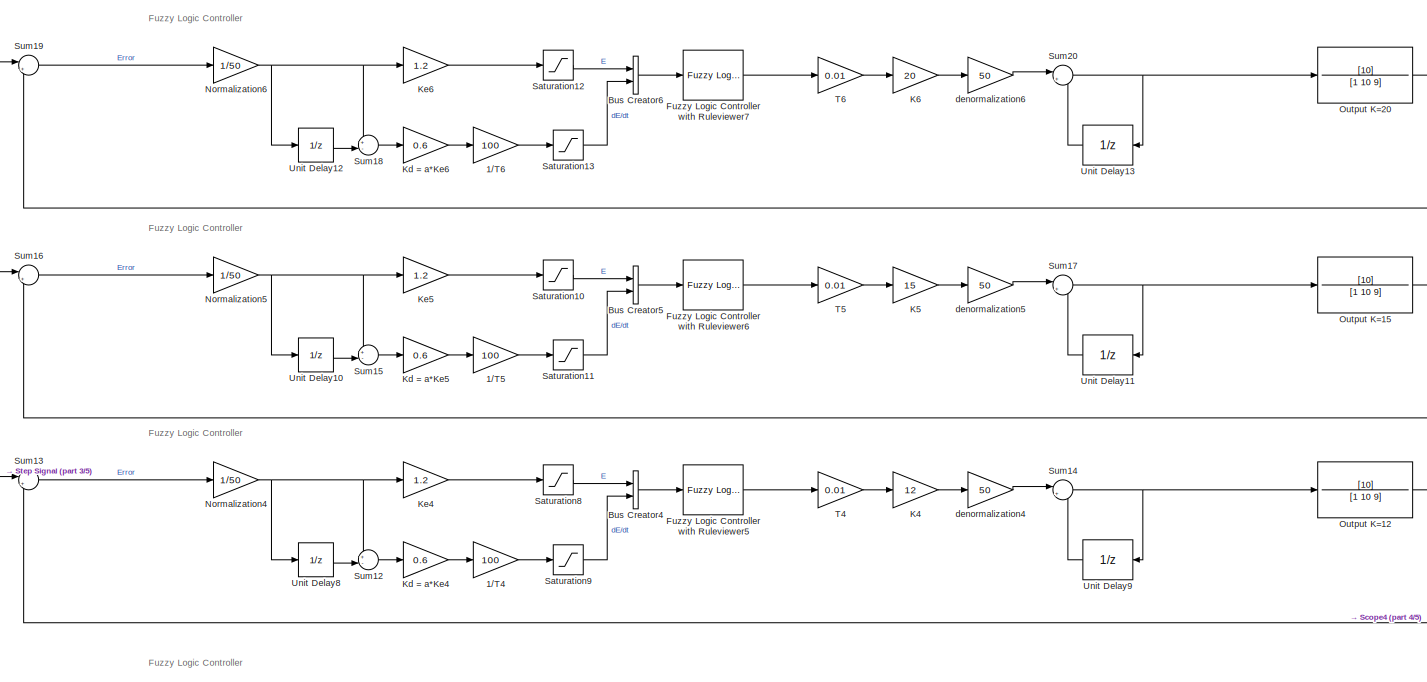
[diagram: root canvas - part 1/5, top center region]
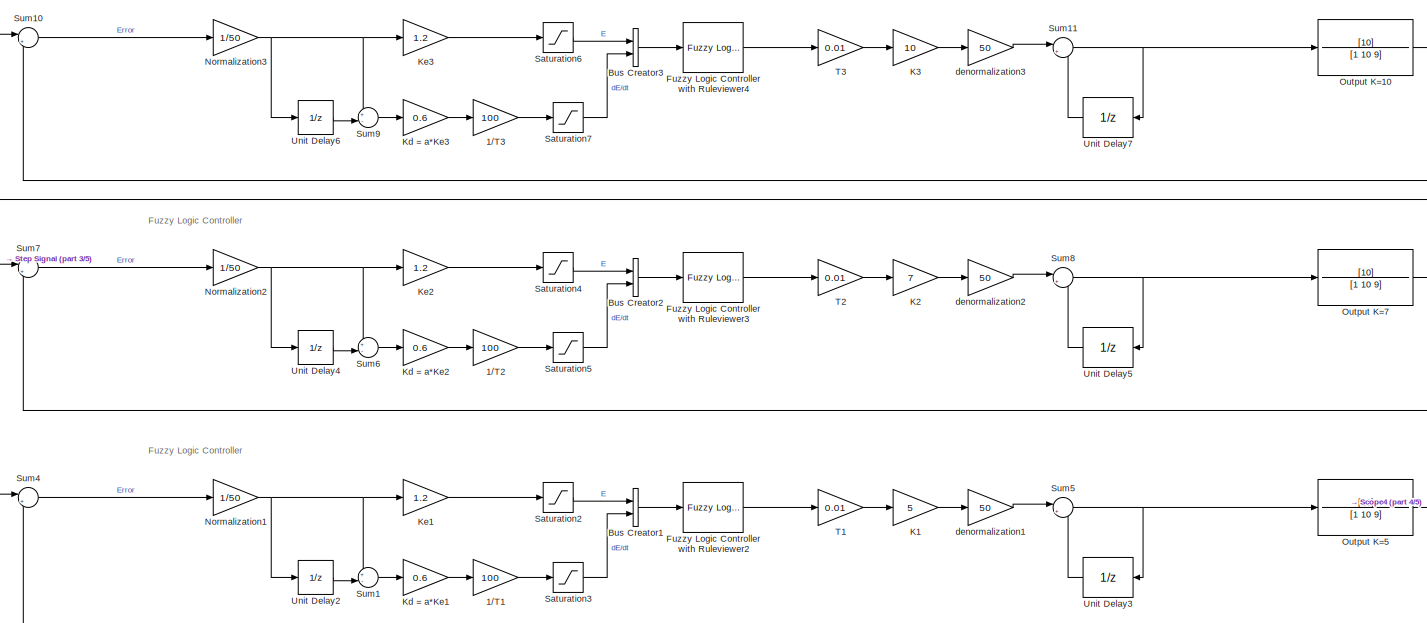
[diagram: root canvas - part 2/5, central region]
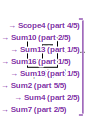
[diagram: root canvas - part 3/5, middle left region]
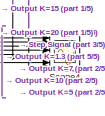
[diagram: root canvas - part 4/5, middle right region]
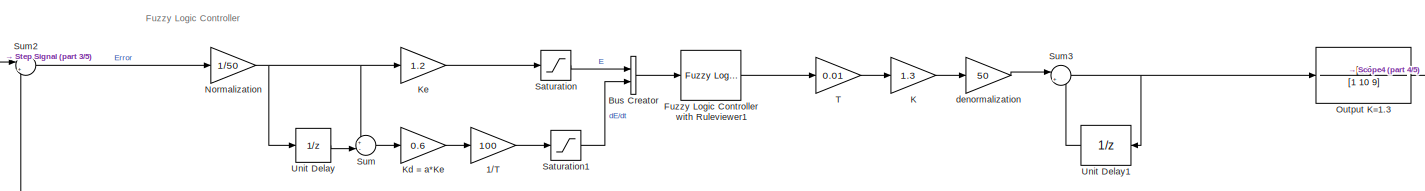
[diagram: root canvas - part 5/5, bottom center region]
MODEL slx_01858eada21d
KIND model
CONFIG AbsTol = auto
CONFIG EnableMultiTasking = off
CONFIG FixedStep = auto
CONFIG MaxStep = auto
CONFIG MinStep = auto
CONFIG RelTol = 1e-3
CONFIG SampleTimeConstraint = Unconstrained
CONFIG Solver = VariableStepAuto
CONFIG SolverName = VariableStepAuto
CONFIG StartTime = 0.0
CONFIG StopTime = 10.0
BLOCK [Gain] 1//T
  Gain = 100
BLOCK [Gain] 1//T1
  Gain = 100
BLOCK [Gain] 1//T2
  Gain = 100
BLOCK [Gain] 1//T3
  Gain = 100
BLOCK [Gain] 1//T4
  Gain = 100
BLOCK [Gain] 1//T5
  Gain = 100
BLOCK [Gain] 1//T6
  Gain = 100
BLOCK [BusCreator] Bus Creator
  DisplayOption = bar
  InheritFromInputs = on
  Inputs = 2
  Ports = [2, 1]
BLOCK [BusCreator] Bus Creator1
  DisplayOption = bar
  InheritFromInputs = on
  Inputs = 2
  Ports = [2, 1]
BLOCK [BusCreator] Bus Creator2
  DisplayOption = bar
  InheritFromInputs = on
  Inputs = 2
  Ports = [2, 1]
BLOCK [BusCreator] Bus Creator3
  DisplayOption = bar
  InheritFromInputs = on
  Inputs = 2
  Ports = [2, 1]
BLOCK [BusCreator] Bus Creator4
  DisplayOption = bar
  InheritFromInputs = on
  Inputs = 2
  Ports = [2, 1]
BLOCK [BusCreator] Bus Creator5
  DisplayOption = bar
  InheritFromInputs = on
  Inputs = 2
  Ports = [2, 1]
BLOCK [BusCreator] Bus Creator6
  DisplayOption = bar
  InheritFromInputs = on
  Inputs = 2
  Ports = [2, 1]
BLOCK [Reference] Fuzzy Logic Controller with Ruleviewer1  REF=fuzblock/Fuzzy Logic   (lib defined in mdl_858b3b3e7478)
Controller 
with Ruleviewer
  Ports = [1, 1]
  SourceBlock = fuzblock/Fuzzy Logic \nController \nwith Ruleviewer
  SourceProductBaseCode = FL
  SourceType = Fuzzy Inference System
BLOCK [Reference] Fuzzy Logic Controller with Ruleviewer2  REF=fuzblock/Fuzzy Logic   (lib defined in mdl_858b3b3e7478)
Controller 
with Ruleviewer
  Ports = [1, 1]
  SourceBlock = fuzblock/Fuzzy Logic \nController \nwith Ruleviewer
  SourceProductBaseCode = FL
  SourceType = Fuzzy Inference System
BLOCK [Reference] Fuzzy Logic Controller with Ruleviewer3  REF=fuzblock/Fuzzy Logic   (lib defined in mdl_858b3b3e7478)
Controller 
with Ruleviewer
  Ports = [1, 1]
  SourceBlock = fuzblock/Fuzzy Logic \nController \nwith Ruleviewer
  SourceProductBaseCode = FL
  SourceType = Fuzzy Inference System
BLOCK [Reference] Fuzzy Logic Controller with Ruleviewer4  REF=fuzblock/Fuzzy Logic   (lib defined in mdl_858b3b3e7478)
Controller 
with Ruleviewer
  Ports = [1, 1]
  SourceBlock = fuzblock/Fuzzy Logic \nController \nwith Ruleviewer
  SourceProductBaseCode = FL
  SourceType = Fuzzy Inference System
BLOCK [Reference] Fuzzy Logic Controller with Ruleviewer5  REF=fuzblock/Fuzzy Logic   (lib defined in mdl_858b3b3e7478)
Controller 
with Ruleviewer
  Ports = [1, 1]
  SourceBlock = fuzblock/Fuzzy Logic \nController \nwith Ruleviewer
  SourceProductBaseCode = FL
  SourceType = Fuzzy Inference System
BLOCK [Reference] Fuzzy Logic Controller with Ruleviewer6  REF=fuzblock/Fuzzy Logic   (lib defined in mdl_858b3b3e7478)
Controller 
with Ruleviewer
  Ports = [1, 1]
  SourceBlock = fuzblock/Fuzzy Logic \nController \nwith Ruleviewer
  SourceProductBaseCode = FL
  SourceType = Fuzzy Inference System
BLOCK [Reference] Fuzzy Logic Controller with Ruleviewer7  REF=fuzblock/Fuzzy Logic   (lib defined in mdl_858b3b3e7478)
Controller 
with Ruleviewer
  Ports = [1, 1]
  SourceBlock = fuzblock/Fuzzy Logic \nController \nwith Ruleviewer
  SourceProductBaseCode = FL
  SourceType = Fuzzy Inference System
BLOCK [Gain] K
  Gain = 1.3
BLOCK [Gain] K1
  Gain = 5
BLOCK [Gain] K2
  Gain = 7
BLOCK [Gain] K3
  Gain = 10
BLOCK [Gain] K4
  Gain = 12
BLOCK [Gain] K5
  Gain = 15
BLOCK [Gain] K6
  Gain = 20
BLOCK [Gain] Kd = a*Ke
  Gain = 0.6
BLOCK [Gain] Kd = a*Ke1
  Gain = 0.6
BLOCK [Gain] Kd = a*Ke2
  Gain = 0.6
BLOCK [Gain] Kd = a*Ke3
  Gain = 0.6
BLOCK [Gain] Kd = a*Ke4
  Gain = 0.6
BLOCK [Gain] Kd = a*Ke5
  Gain = 0.6
BLOCK [Gain] Kd = a*Ke6
  Gain = 0.6
BLOCK [Gain] Ke
  Gain = 1.2
BLOCK [Gain] Ke1
  Gain = 1.2
BLOCK [Gain] Ke2
  Gain = 1.2
BLOCK [Gain] Ke3
  Gain = 1.2
BLOCK [Gain] Ke4
  Gain = 1.2
BLOCK [Gain] Ke5
  Gain = 1.2
BLOCK [Gain] Ke6
  Gain = 1.2
BLOCK [Gain] Normalization
  Gain = 1/50
BLOCK [Gain] Normalization1
  Gain = 1/50
BLOCK [Gain] Normalization2
  Gain = 1/50
BLOCK [Gain] Normalization3
  Gain = 1/50
BLOCK [Gain] Normalization4
  Gain = 1/50
BLOCK [Gain] Normalization5
  Gain = 1/50
BLOCK [Gain] Normalization6
  Gain = 1/50
BLOCK [TransferFcn] Output K=1.3
  Denominator = [1 10 9]
  Numerator = [10]
BLOCK [TransferFcn] Output K=10
  Denominator = [1 10 9]
  Numerator = [10]
BLOCK [TransferFcn] Output K=12
  Denominator = [1 10 9]
  Numerator = [10]
BLOCK [TransferFcn] Output K=15
  Denominator = [1 10 9]
  Numerator = [10]
BLOCK [TransferFcn] Output K=20
  Denominator = [1 10 9]
  Numerator = [10]
BLOCK [TransferFcn] Output K=5
  Denominator = [1 10 9]
  Numerator = [10]
BLOCK [TransferFcn] Output K=7
  Denominator = [1 10 9]
  Numerator = [10]
BLOCK [Saturate] Saturation
  LowerLimit = -1
  UpperLimit = 1
BLOCK [Saturate] Saturation1
  LowerLimit = -1
  UpperLimit = 1
BLOCK [Saturate] Saturation10
  LowerLimit = -1
  UpperLimit = 1
BLOCK [Saturate] Saturation11
  LowerLimit = -1
  UpperLimit = 1
BLOCK [Saturate] Saturation12
  LowerLimit = -1
  UpperLimit = 1
BLOCK [Saturate] Saturation13
  LowerLimit = -1
  UpperLimit = 1
BLOCK [Saturate] Saturation2
  LowerLimit = -1
  UpperLimit = 1
BLOCK [Saturate] Saturation3
  LowerLimit = -1
  UpperLimit = 1
BLOCK [Saturate] Saturation4
  LowerLimit = -1
  UpperLimit = 1
BLOCK [Saturate] Saturation5
  LowerLimit = -1
  UpperLimit = 1
BLOCK [Saturate] Saturation6
  LowerLimit = -1
  UpperLimit = 1
BLOCK [Saturate] Saturation7
  LowerLimit = -1
  UpperLimit = 1
BLOCK [Saturate] Saturation8
  LowerLimit = -1
  UpperLimit = 1
BLOCK [Saturate] Saturation9
  LowerLimit = -1
  UpperLimit = 1
BLOCK [Scope] Scope4
  Floating = off
  NumInputPorts = 8
  Ports = [8]
  ScopeSpecificationString = Simulink.scopes.TimeScopeBlockCfg('CurrentConfiguration', extmgr.ConfigurationSet(extmgr.Configuration('Core','General UI',true),extmgr.Configuration('Core','Source UI',true),extmgr.Configuration('Sources','WiredSimulink',true),extmgr.Configuration('Visuals','Time Domain',true,'SerializedDisplays',{struct('MinYLimReal','0','MaxYLimReal','60','YLabelReal','','MinYLimMag','0.00000','MaxYLimMag','1.0...<+1672ch>
BLOCK [Step] Step Signal
  After = 50
  SampleTime = 0.01
  Time = 0
BLOCK [Sum] Sum
  Inputs = +-|
  Ports = [2, 1]
BLOCK [Sum] Sum1
  Inputs = +-|
  Ports = [2, 1]
BLOCK [Sum] Sum10
  Inputs = |+-
  Ports = [2, 1]
BLOCK [Sum] Sum11
  Inputs = |++
  Ports = [2, 1]
BLOCK [Sum] Sum12
  Inputs = +-|
  Ports = [2, 1]
BLOCK [Sum] Sum13
  Inputs = |+-
  Ports = [2, 1]
BLOCK [Sum] Sum14
  Inputs = |++
  Ports = [2, 1]
BLOCK [Sum] Sum15
  Inputs = +-|
  Ports = [2, 1]
BLOCK [Sum] Sum16
  Inputs = |+-
  Ports = [2, 1]
BLOCK [Sum] Sum17
  Inputs = |++
  Ports = [2, 1]
BLOCK [Sum] Sum18
  Inputs = +-|
  Ports = [2, 1]
BLOCK [Sum] Sum19
  Inputs = |+-
  Ports = [2, 1]
BLOCK [Sum] Sum2
  Inputs = |+-
  Ports = [2, 1]
BLOCK [Sum] Sum20
  Inputs = |++
  Ports = [2, 1]
BLOCK [Sum] Sum3
  Inputs = |++
  Ports = [2, 1]
BLOCK [Sum] Sum4
  Inputs = |+-
  Ports = [2, 1]
BLOCK [Sum] Sum5
  Inputs = |++
  Ports = [2, 1]
BLOCK [Sum] Sum6
  Inputs = +-|
  Ports = [2, 1]
BLOCK [Sum] Sum7
  Inputs = |+-
  Ports = [2, 1]
BLOCK [Sum] Sum8
  Inputs = |++
  Ports = [2, 1]
BLOCK [Sum] Sum9
  Inputs = +-|
  Ports = [2, 1]
BLOCK [Gain] T
  Gain = 0.01
BLOCK [Gain] T1
  Gain = 0.01
BLOCK [Gain] T2
  Gain = 0.01
BLOCK [Gain] T3
  Gain = 0.01
BLOCK [Gain] T4
  Gain = 0.01
BLOCK [Gain] T5
  Gain = 0.01
BLOCK [Gain] T6
  Gain = 0.01
BLOCK [UnitDelay] Unit Delay
  HasFrameUpgradeWarning = on
  SampleTime = -1
BLOCK [UnitDelay] Unit Delay1
  HasFrameUpgradeWarning = on
  SampleTime = -1
BLOCK [UnitDelay] Unit Delay10
  HasFrameUpgradeWarning = on
  SampleTime = -1
BLOCK [UnitDelay] Unit Delay11
  HasFrameUpgradeWarning = on
  SampleTime = -1
BLOCK [UnitDelay] Unit Delay12
  HasFrameUpgradeWarning = on
  SampleTime = -1
BLOCK [UnitDelay] Unit Delay13
  HasFrameUpgradeWarning = on
  SampleTime = -1
BLOCK [UnitDelay] Unit Delay2
  HasFrameUpgradeWarning = on
  SampleTime = -1
BLOCK [UnitDelay] Unit Delay3
  HasFrameUpgradeWarning = on
  SampleTime = -1
BLOCK [UnitDelay] Unit Delay4
  HasFrameUpgradeWarning = on
  SampleTime = -1
BLOCK [UnitDelay] Unit Delay5
  HasFrameUpgradeWarning = on
  SampleTime = -1
BLOCK [UnitDelay] Unit Delay6
  HasFrameUpgradeWarning = on
  SampleTime = -1
BLOCK [UnitDelay] Unit Delay7
  HasFrameUpgradeWarning = on
  SampleTime = -1
BLOCK [UnitDelay] Unit Delay8
  HasFrameUpgradeWarning = on
  SampleTime = -1
BLOCK [UnitDelay] Unit Delay9
  HasFrameUpgradeWarning = on
  SampleTime = -1
BLOCK [Gain] denormalization
  Gain = 50
BLOCK [Gain] denormalization1
  Gain = 50
BLOCK [Gain] denormalization2
  Gain = 50
BLOCK [Gain] denormalization3
  Gain = 50
BLOCK [Gain] denormalization4
  Gain = 50
BLOCK [Gain] denormalization5
  Gain = 50
BLOCK [Gain] denormalization6
  Gain = 50
ANNOTATION (root): Fuzzy Logic Controller
LINE 1//T1:1 -> Saturation3:1
LINE 1//T2:1 -> Saturation5:1
LINE 1//T3:1 -> Saturation7:1
LINE 1//T4:1 -> Saturation9:1
LINE 1//T5:1 -> Saturation11:1
LINE 1//T6:1 -> Saturation13:1
LINE 1//T:1 -> Saturation1:1
LINE Bus Creator1:1 -> Fuzzy Logic Controller with Ruleviewer2:1
LINE Bus Creator2:1 -> Fuzzy Logic Controller with Ruleviewer3:1
LINE Bus Creator3:1 -> Fuzzy Logic Controller with Ruleviewer4:1
LINE Bus Creator4:1 -> Fuzzy Logic Controller with Ruleviewer5:1
LINE Bus Creator5:1 -> Fuzzy Logic Controller with Ruleviewer6:1
LINE Bus Creator6:1 -> Fuzzy Logic Controller with Ruleviewer7:1
LINE Bus Creator:1 -> Fuzzy Logic Controller with Ruleviewer1:1
LINE Fuzzy Logic Controller with Ruleviewer1:1 -> T:1
LINE Fuzzy Logic Controller with Ruleviewer2:1 -> T1:1
LINE Fuzzy Logic Controller with Ruleviewer3:1 -> T2:1
LINE Fuzzy Logic Controller with Ruleviewer4:1 -> T3:1
LINE Fuzzy Logic Controller with Ruleviewer5:1 -> T4:1
LINE Fuzzy Logic Controller with Ruleviewer6:1 -> T5:1
LINE Fuzzy Logic Controller with Ruleviewer7:1 -> T6:1
LINE K1:1 -> denormalization1:1
LINE K2:1 -> denormalization2:1
LINE K3:1 -> denormalization3:1
LINE K4:1 -> denormalization4:1
LINE K5:1 -> denormalization5:1
LINE K6:1 -> denormalization6:1
LINE K:1 -> denormalization:1
LINE Kd = a*Ke1:1 -> 1//T1:1
LINE Kd = a*Ke2:1 -> 1//T2:1
LINE Kd = a*Ke3:1 -> 1//T3:1
LINE Kd = a*Ke4:1 -> 1//T4:1
LINE Kd = a*Ke5:1 -> 1//T5:1
LINE Kd = a*Ke6:1 -> 1//T6:1
LINE Kd = a*Ke:1 -> 1//T:1
LINE Ke1:1 -> Saturation2:1
LINE Ke2:1 -> Saturation4:1
LINE Ke3:1 -> Saturation6:1
LINE Ke4:1 -> Saturation8:1
LINE Ke5:1 -> Saturation10:1
LINE Ke6:1 -> Saturation12:1
LINE Ke:1 -> Saturation:1
NET Normalization1:1 -> Ke1:1, Sum1:1, Unit Delay2:1
NET Normalization2:1 -> Ke2:1, Sum6:1, Unit Delay4:1
NET Normalization3:1 -> Ke3:1, Sum9:1, Unit Delay6:1
NET Normalization4:1 -> Ke4:1, Sum12:1, Unit Delay8:1
NET Normalization5:1 -> Ke5:1, Sum15:1, Unit Delay10:1
NET Normalization6:1 -> Ke6:1, Sum18:1, Unit Delay12:1
NET Normalization:1 -> Ke:1, Sum:1, Unit Delay:1
NET Output K=1.3:1 -> Scope4:3, Sum2:2
NET Output K=10:1 -> Scope4:5, Sum10:2
NET Output K=12:1 -> Scope4:1, Sum13:2
NET Output K=15:1 -> Scope4:6, Sum16:2
NET Output K=20:1 -> Scope4:8, Sum19:2
NET Output K=5:1 -> Scope4:7, Sum4:2
NET Output K=7:1 -> Scope4:4, Sum7:2
LINE Saturation10:1 -> Bus Creator5:1
LINE Saturation11:1 -> Bus Creator5:2
LINE Saturation12:1 -> Bus Creator6:1
LINE Saturation13:1 -> Bus Creator6:2
LINE Saturation1:1 -> Bus Creator:2
LINE Saturation2:1 -> Bus Creator1:1
LINE Saturation3:1 -> Bus Creator1:2
LINE Saturation4:1 -> Bus Creator2:1
LINE Saturation5:1 -> Bus Creator2:2
LINE Saturation6:1 -> Bus Creator3:1
LINE Saturation7:1 -> Bus Creator3:2
LINE Saturation8:1 -> Bus Creator4:1
LINE Saturation9:1 -> Bus Creator4:2
LINE Saturation:1 -> Bus Creator:1
NET Step Signal:1 -> Scope4:2, Sum10:1, Sum13:1, Sum16:1, Sum19:1, Sum2:1, Sum4:1, Sum7:1
LINE Sum10:1 -> Normalization3:1
NET Sum11:1 -> Output K=10:1, Unit Delay7:1
LINE Sum12:1 -> Kd = a*Ke4:1
LINE Sum13:1 -> Normalization4:1
NET Sum14:1 -> Output K=12:1, Unit Delay9:1
LINE Sum15:1 -> Kd = a*Ke5:1
LINE Sum16:1 -> Normalization5:1
NET Sum17:1 -> Output K=15:1, Unit Delay11:1
LINE Sum18:1 -> Kd = a*Ke6:1
LINE Sum19:1 -> Normalization6:1
LINE Sum1:1 -> Kd = a*Ke1:1
NET Sum20:1 -> Output K=20:1, Unit Delay13:1
LINE Sum2:1 -> Normalization:1
NET Sum3:1 -> Output K=1.3:1, Unit Delay1:1
LINE Sum4:1 -> Normalization1:1
NET Sum5:1 -> Output K=5:1, Unit Delay3:1
LINE Sum6:1 -> Kd = a*Ke2:1
LINE Sum7:1 -> Normalization2:1
NET Sum8:1 -> Output K=7:1, Unit Delay5:1
LINE Sum9:1 -> Kd = a*Ke3:1
LINE Sum:1 -> Kd = a*Ke:1
LINE T1:1 -> K1:1
LINE T2:1 -> K2:1
LINE T3:1 -> K3:1
LINE T4:1 -> K4:1
LINE T5:1 -> K5:1
LINE T6:1 -> K6:1
LINE T:1 -> K:1
LINE Unit Delay10:1 -> Sum15:2
LINE Unit Delay11:1 -> Sum17:2
LINE Unit Delay12:1 -> Sum18:2
LINE Unit Delay13:1 -> Sum20:2
LINE Unit Delay1:1 -> Sum3:2
LINE Unit Delay2:1 -> Sum1:2
LINE Unit Delay3:1 -> Sum5:2
LINE Unit Delay4:1 -> Sum6:2
LINE Unit Delay5:1 -> Sum8:2
LINE Unit Delay6:1 -> Sum9:2
LINE Unit Delay7:1 -> Sum11:2
LINE Unit Delay8:1 -> Sum12:2
LINE Unit Delay9:1 -> Sum14:2
LINE Unit Delay:1 -> Sum:2
LINE denormalization1:1 -> Sum5:1
LINE denormalization2:1 -> Sum8:1
LINE denormalization3:1 -> Sum11:1
LINE denormalization4:1 -> Sum14:1
LINE denormalization5:1 -> Sum17:1
LINE denormalization6:1 -> Sum20:1
LINE denormalization:1 -> Sum3:1
note: NET lines group one-source signal fan-out (src -> all destinations, sorted); 1:1 wires keep LINE
